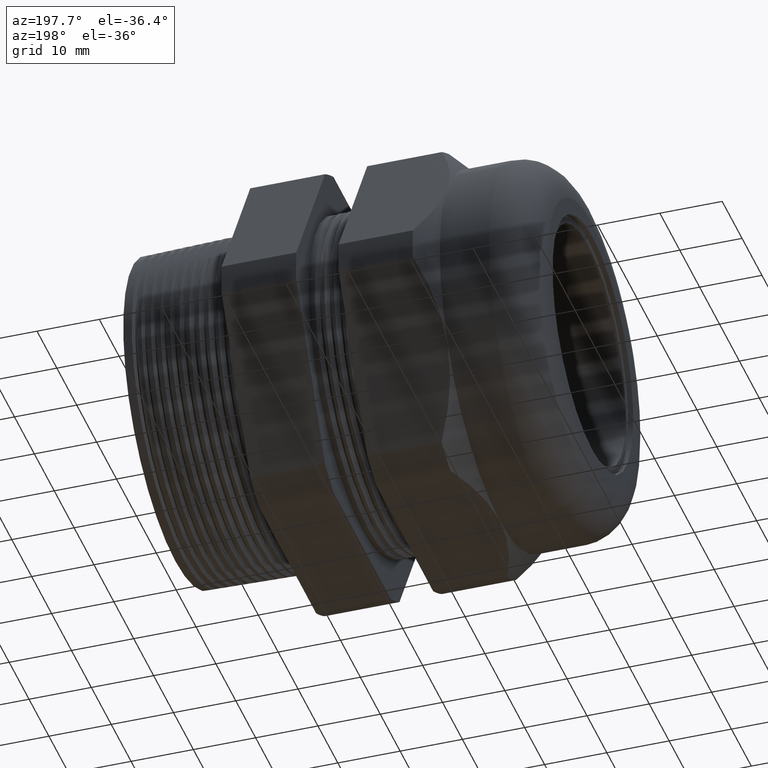
[diagram: clean part render]
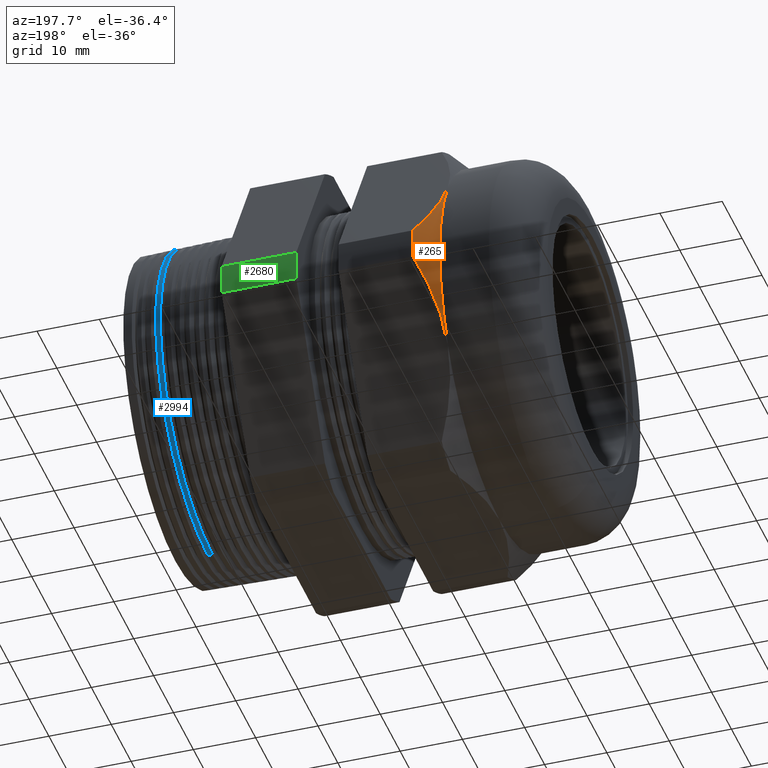
[diagram: same view with three faces highlighted in distinct colors, each labeled with its STEP entity id]
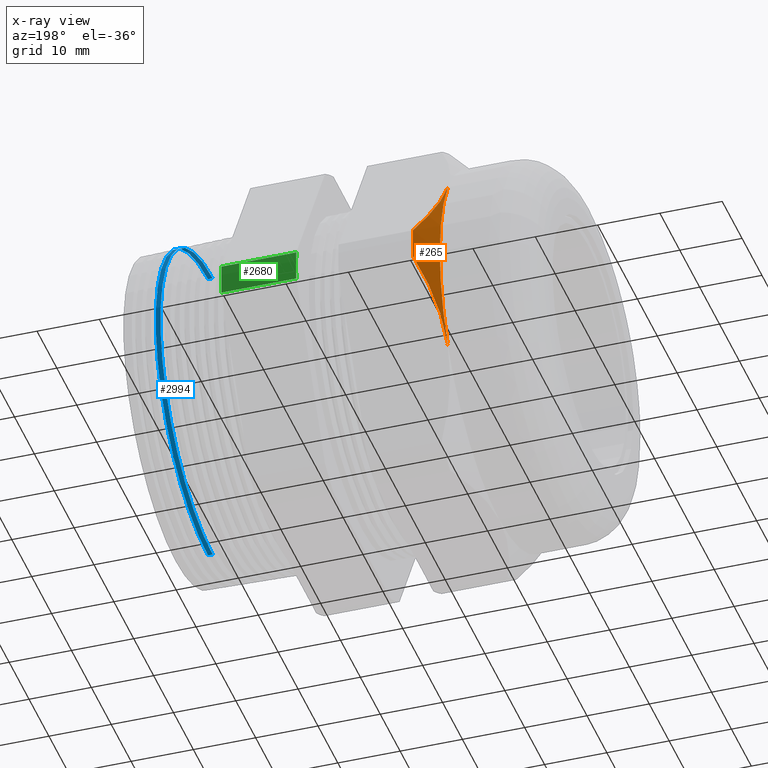
[diagram: x-ray of the same camera — body ghosted, the three highlighted faces saturated]
A machine part, auxiliary view with three faces highlighted in distinct colors.
The next image is the same camera in x-ray (body ghosted, the three faces saturated) — at least one of them is partly hidden behind the body in this view.
Their STEP definitions:

[orange] entity #265 — the highlighted conical surface has half-angle 45 deg.
#265 = ADVANCED_FACE ( 'NONE', ( #1013 ), #1090, .T. ) ;
#266 = EDGE_LOOP ( 'NONE', ( #267, #268, #269, #270 ) ) ;
#267 = ORIENTED_EDGE ( 'NONE', *, *, #4086, .F. ) ;
#268 = ORIENTED_EDGE ( 'NONE', *, *, #2968, .T. ) ;
#269 = ORIENTED_EDGE ( 'NONE', *, *, #3874, .F. ) ;
#270 = ORIENTED_EDGE ( 'NONE', *, *, #4128, .F. ) ;
#1013 = FACE_OUTER_BOUND ( 'NONE', #266, .T. ) ;
#1086 = DIRECTION ( 'NONE',  ( 0.0000000000000000000, 0.0000000000000000000, 1.000000000000000000 ) ) ;
#1087 = DIRECTION ( 'NONE',  ( 1.000000000000000000, 0.0000000000000000000, 0.0000000000000000000 ) ) ;
#1088 = CARTESIAN_POINT ( 'NONE',  ( -1.649449999999999600, 0.0000000000000000000, 0.0000000000000000000 ) ) ;
#1089 = AXIS2_PLACEMENT_3D ( 'NONE', #1088, #1087, #1086 ) ;
#1090 = CONICAL_SURFACE ( 'NONE', #1089, 1.179999999999999900, 0.7853981633974501700 ) ;
#2305 = CARTESIAN_POINT ( 'NONE',  ( -1.649449999999999600, 1.021909976465637900, 0.5899999999999999700 ) ) ;
#2311 = DIRECTION ( 'NONE',  ( 0.0000000000000000000, 0.0000000000000000000, -1.000000000000000000 ) ) ;
#2312 = DIRECTION ( 'NONE',  ( 1.000000000000000000, 0.0000000000000000000, 0.0000000000000000000 ) ) ;
#2313 = CARTESIAN_POINT ( 'NONE',  ( -1.649449999999999600, 0.0000000000000000000, 0.0000000000000000000 ) ) ;
#2314 = AXIS2_PLACEMENT_3D ( 'NONE', #2313, #2312, #2311 ) ;
#2315 = CIRCLE ( 'NONE', #2314, 1.179999999999999900 ) ;
#2316 = CARTESIAN_POINT ( 'NONE',  ( -1.649449999999999600, 1.021909976465638300, -0.5900000000000000800 ) ) ;
#2967 = VERTEX_POINT ( 'NONE', #2316 ) ;
#2968 = EDGE_CURVE ( 'NONE', #2967, #2971, #2315, .T. ) ;
#2971 = VERTEX_POINT ( 'NONE', #2305 ) ;
#3127 = B_SPLINE_CURVE_WITH_KNOTS ( 'NONE', 3,
 ( #3129, #3128, #3184, #3183, #3182, #3181, #3180, #3179, #3178, #3177 ),
 .UNSPECIFIED., .F., .F.,
 ( 4, 2, 2, 2, 4 ),
 ( 2.483246384144313400E-007, 0.007410219950490957600, 0.01111520576341722300, 0.01296769866988035600, 0.01482019157634348700 ),
 .UNSPECIFIED. ) ;
#3128 = CARTESIAN_POINT ( 'NONE',  ( -1.558901475994756600, 1.260934842160163400, 0.1759967883447547100 ) ) ;
#3129 = CARTESIAN_POINT ( 'NONE',  ( -1.519649999999999700, 1.306152847968161000, 0.09767690486835786700 ) ) ;
#3177 = CARTESIAN_POINT ( 'NONE',  ( -1.649449999999999600, 1.021909976465637900, 0.5899999999999999700 ) ) ;
#3178 = CARTESIAN_POINT ( 'NONE',  ( -1.649449999999998800, 1.034213843210325600, 0.5686890776686431800 ) ) ;
#3179 = CARTESIAN_POINT ( 'NONE',  ( -1.648671362268123100, 1.046630246888397900, 0.5471832356509358500 ) ) ;
#3180 = CARTESIAN_POINT ( 'NONE',  ( -1.645578772962689800, 1.071299393251978100, 0.5044550207698633700 ) ) ;
#3181 = CARTESIAN_POINT ( 'NONE',  ( -1.643274933607495900, 1.083539571180133700, 0.4832544107046148900 ) ) ;
#3182 = CARTESIAN_POINT ( 'NONE',  ( -1.634227948313096100, 1.119994011135374800, 0.4201134685406686100 ) ) ;
#3183 = CARTESIAN_POINT ( 'NONE',  ( -1.625348669446345900, 1.143942096382617700, 0.3786341681484526300 ) ) ;
#3184 = CARTESIAN_POINT ( 'NONE',  ( -1.591345505985919400, 1.214868581998317800, 0.2557858914597571100 ) ) ;
#3545 = CARTESIAN_POINT ( 'NONE',  ( -1.519649999999999700, 1.306152847968161000, -0.09767690486835838000 ) ) ;
#3546 = CARTESIAN_POINT ( 'NONE',  ( -1.539300024126190900, 1.283515867254771300, -0.1368853055939061600 ) ) ;
#3547 = CARTESIAN_POINT ( 'NONE',  ( -1.557343162014755300, 1.260539715777235600, -0.1766811673153969600 ) ) ;
#3548 = CARTESIAN_POINT ( 'NONE',  ( -1.589329828712719100, 1.213885783483384900, -0.2574881484212248100 ) ) ;
#3549 = CARTESIAN_POINT ( 'NONE',  ( -1.603147026242972800, 1.190386845346794500, -0.2981895031977165300 ) ) ;
#3550 = CARTESIAN_POINT ( 'NONE',  ( -1.637033206165112900, 1.119292164269853200, -0.4213291029708848800 ) ) ;
#3551 = CARTESIAN_POINT ( 'NONE',  ( -1.649449999999999600, 1.071091697083841100, -0.5048147610856147400 ) ) ;
#3552 = CARTESIAN_POINT ( 'NONE',  ( -1.649449999999999600, 1.021909976465638300, -0.5900000000000000800 ) ) ;
#3556 = B_SPLINE_CURVE_WITH_KNOTS ( 'NONE', 3,
 ( #3552, #3551, #3550, #3549, #3548, #3547, #3546, #3545 ),
 .UNSPECIFIED., .F., .F.,
 ( 4, 2, 2, 4 ),
 ( 0.01482019157634346400, 0.02222508228781089700, 0.02592752764354461900, 0.02962997299927833800 ),
 .UNSPECIFIED. ) ;
#3604 = DIRECTION ( 'NONE',  ( 0.0000000000000000000, 0.0000000000000000000, -1.000000000000000000 ) ) ;
#3605 = DIRECTION ( 'NONE',  ( 1.000000000000000000, 0.0000000000000000000, 0.0000000000000000000 ) ) ;
#3606 = CARTESIAN_POINT ( 'NONE',  ( -1.519649999999999700, 0.0000000000000000000, 0.0000000000000000000 ) ) ;
#3607 = AXIS2_PLACEMENT_3D ( 'NONE', #3606, #3605, #3604 ) ;
#3608 = CIRCLE ( 'NONE', #3607, 1.309800000000000100 ) ;
#3610 = CARTESIAN_POINT ( 'NONE',  ( -1.519649999999999700, 1.306152847968161000, -0.09767690486835838000 ) ) ;
#3655 = CARTESIAN_POINT ( 'NONE',  ( -1.519649999999999700, 1.306152847968161000, 0.09767690486835786700 ) ) ;
#3874 = EDGE_CURVE ( 'NONE', #4133, #2971, #3127, .T. ) ;
#4086 = EDGE_CURVE ( 'NONE', #2967, #4124, #3556, .T. ) ;
#4124 = VERTEX_POINT ( 'NONE', #3610 ) ;
#4128 = EDGE_CURVE ( 'NONE', #4124, #4133, #3608, .T. ) ;
#4133 = VERTEX_POINT ( 'NONE', #3655 ) ;

[blue] entity #2994 — the highlighted conical surface has half-angle 1.5 deg.
#2019 = CARTESIAN_POINT ( 'NONE',  ( 0.1633178923772483100, 0.0000000000000000000, 1.033242555088589800 ) ) ;
#2020 = DIRECTION ( 'NONE',  ( 0.0000000000000000000, 0.0000000000000000000, -1.000000000000000000 ) ) ;
#2021 = DIRECTION ( 'NONE',  ( -1.000000000000000000, 0.0000000000000000000, 0.0000000000000000000 ) ) ;
#2022 = CARTESIAN_POINT ( 'NONE',  ( 0.1633178923772483100, 0.0000000000000000000, 0.0000000000000000000 ) ) ;
#2023 = AXIS2_PLACEMENT_3D ( 'NONE', #2022, #2021, #2020 ) ;
#2024 = CIRCLE ( 'NONE', #2023, 1.033242555088589800 ) ;
#2025 = CARTESIAN_POINT ( 'NONE',  ( 0.1633178923772483100, 1.265357187832074100E-016, -1.033242555088589800 ) ) ;
#2338 = DIRECTION ( 'NONE',  ( 0.0000000000000000000, 0.0000000000000000000, 1.000000000000000000 ) ) ;
#2339 = DIRECTION ( 'NONE',  ( -1.000000000000000000, 0.0000000000000000000, 0.0000000000000000000 ) ) ;
#2340 = AXIS2_PLACEMENT_3D ( 'NONE', #2342, #2339, #2338 ) ;
#2341 = CONICAL_SURFACE ( 'NONE', #2340, 1.027044815981552200, 0.02617993877990773500 ) ;
#2342 = CARTESIAN_POINT ( 'NONE',  ( 0.3999999999999999700, 0.0000000000000000000, 0.0000000000000000000 ) ) ;
#2343 = FACE_OUTER_BOUND ( 'NONE', #2987, .T. ) ;
#2429 = DIRECTION ( 'NONE',  ( -0.9996573249755573700, 0.0000000000000000000, 0.02617694830786594700 ) ) ;
#2430 = VECTOR ( 'NONE', #2429, 39.37007874015748100 ) ;
#2431 = CARTESIAN_POINT ( 'NONE',  ( 0.3999999999999999700, 0.0000000000000000000, 1.027044815981552200 ) ) ;
#2432 = LINE ( 'NONE', #2431, #2430 ) ;
#2433 = DIRECTION ( 'NONE',  ( -0.9996573249755573700, 3.205751595667375400E-018, -0.02617694830786594700 ) ) ;
#2434 = VECTOR ( 'NONE', #2433, 39.37007874015748100 ) ;
#2435 = CARTESIAN_POINT ( 'NONE',  ( 0.3999999999999999700, 1.257767146472690300E-016, -1.027044815981552200 ) ) ;
#2436 = LINE ( 'NONE', #2435, #2434 ) ;
#2809 = VERTEX_POINT ( 'NONE', #2025 ) ;
#2811 = EDGE_CURVE ( 'NONE', #2812, #2809, #2024, .T. ) ;
#2812 = VERTEX_POINT ( 'NONE', #2019 ) ;
#2987 = EDGE_LOOP ( 'NONE', ( #3038, #3048, #3047, #3035 ) ) ;
#2994 = ADVANCED_FACE ( 'NONE', ( #2343 ), #2341, .T. ) ;
#3035 = ORIENTED_EDGE ( 'NONE', *, *, #3043, .F. ) ;
#3038 = ORIENTED_EDGE ( 'NONE', *, *, #4068, .F. ) ;
#3040 = EDGE_CURVE ( 'NONE', #4066, #2809, #2436, .T. ) ;
#3043 = EDGE_CURVE ( 'NONE', #4062, #2812, #2432, .T. ) ;
#3047 = ORIENTED_EDGE ( 'NONE', *, *, #2811, .F. ) ;
#3048 = ORIENTED_EDGE ( 'NONE', *, *, #3040, .T. ) ;
#3480 = CARTESIAN_POINT ( 'NONE',  ( 0.1931537368685720100, 0.0000000000000000000, 1.032461276004789800 ) ) ;
#3527 = DIRECTION ( 'NONE',  ( 0.0000000000000000000, 0.0000000000000000000, 1.000000000000000000 ) ) ;
#3528 = DIRECTION ( 'NONE',  ( 1.000000000000000000, 0.0000000000000000000, 0.0000000000000000000 ) ) ;
#3529 = CARTESIAN_POINT ( 'NONE',  ( 0.1931537368685720100, 0.0000000000000000000, 0.0000000000000000000 ) ) ;
#3530 = AXIS2_PLACEMENT_3D ( 'NONE', #3529, #3528, #3527 ) ;
#3531 = CIRCLE ( 'NONE', #3530, 1.032461276004789800 ) ;
#3532 = CARTESIAN_POINT ( 'NONE',  ( 0.1931537368685720100, 1.264878792367466000E-016, -1.032461276004789800 ) ) ;
#4062 = VERTEX_POINT ( 'NONE', #3480 ) ;
#4066 = VERTEX_POINT ( 'NONE', #3532 ) ;
#4068 = EDGE_CURVE ( 'NONE', #4066, #4062, #3531, .T. ) ;

[green] entity #2680 — the highlighted cylindrical surface (partial cylindrical patch) has radius 33.2689 mm, axis along (-1, 0, 0).
#1659 = CARTESIAN_POINT ( 'NONE',  ( -0.7824400000000001400, 1.306152847968161000, -0.09767690486835838000 ) ) ;
#1688 = DIRECTION ( 'NONE',  ( -1.000000000000000000, 0.0000000000000000000, 0.0000000000000000000 ) ) ;
#1689 = VECTOR ( 'NONE', #1688, 39.37007874015748100 ) ;
#1690 = CARTESIAN_POINT ( 'NONE',  ( 0.4000000000000000800, 1.306152847968161000, -0.09767690486835838000 ) ) ;
#1691 = LINE ( 'NONE', #1690, #1689 ) ;
#1707 = CYLINDRICAL_SURFACE ( 'NONE', #1771, 1.309800000000000100 ) ;
#1708 = FACE_OUTER_BOUND ( 'NONE', #2675, .T. ) ;
#1709 = DIRECTION ( 'NONE',  ( 0.0000000000000000000, 0.0000000000000000000, 1.000000000000000000 ) ) ;
#1710 = DIRECTION ( 'NONE',  ( -1.000000000000000000, 0.0000000000000000000, 0.0000000000000000000 ) ) ;
#1711 = AXIS2_PLACEMENT_3D ( 'NONE', #1716, #1710, #1709 ) ;
#1712 = CIRCLE ( 'NONE', #1711, 1.309800000000000100 ) ;
#1716 = CARTESIAN_POINT ( 'NONE',  ( -0.7824400000000001400, 0.0000000000000000000, 0.0000000000000000000 ) ) ;
#1759 = DIRECTION ( 'NONE',  ( -1.000000000000000000, 0.0000000000000000000, 0.0000000000000000000 ) ) ;
#1760 = VECTOR ( 'NONE', #1759, 39.37007874015748100 ) ;
#1761 = CARTESIAN_POINT ( 'NONE',  ( 0.4000000000000000800, 1.306152847968161000, 0.09767690486835799200 ) ) ;
#1762 = LINE ( 'NONE', #1761, #1760 ) ;
#1763 = CARTESIAN_POINT ( 'NONE',  ( -0.7824400000000001400, 1.306152847968161000, 0.09767690486835799200 ) ) ;
#1768 = DIRECTION ( 'NONE',  ( 0.0000000000000000000, 0.0000000000000000000, 1.000000000000000000 ) ) ;
#1769 = DIRECTION ( 'NONE',  ( -1.000000000000000000, 0.0000000000000000000, 0.0000000000000000000 ) ) ;
#1770 = CARTESIAN_POINT ( 'NONE',  ( 0.4000000000000000800, 0.0000000000000000000, 0.0000000000000000000 ) ) ;
#1771 = AXIS2_PLACEMENT_3D ( 'NONE', #1770, #1769, #1768 ) ;
#2109 = CARTESIAN_POINT ( 'NONE',  ( -0.3100000000000000000, 1.306152847968161000, -0.09767690486835835200 ) ) ;
#2630 = VERTEX_POINT ( 'NONE', #1659 ) ;
#2650 = EDGE_CURVE ( 'NONE', #2870, #2630, #1691, .T. ) ;
#2670 = EDGE_CURVE ( 'NONE', #2682, #2630, #1712, .T. ) ;
#2671 = ORIENTED_EDGE ( 'NONE', *, *, #2684, .F. ) ;
#2672 = ORIENTED_EDGE ( 'NONE', *, *, #2670, .F. ) ;
#2673 = ORIENTED_EDGE ( 'NONE', *, *, #4175, .F. ) ;
#2674 = ORIENTED_EDGE ( 'NONE', *, *, #2650, .T. ) ;
#2675 = EDGE_LOOP ( 'NONE', ( #2671, #2673, #2674, #2672 ) ) ;
#2680 = ADVANCED_FACE ( 'NONE', ( #1708 ), #1707, .T. ) ;
#2682 = VERTEX_POINT ( 'NONE', #1763 ) ;
#2684 = EDGE_CURVE ( 'NONE', #4170, #2682, #1762, .T. ) ;
#2870 = VERTEX_POINT ( 'NONE', #2109 ) ;
#3690 = DIRECTION ( 'NONE',  ( 0.0000000000000000000, 0.0000000000000000000, -1.000000000000000000 ) ) ;
#3691 = DIRECTION ( 'NONE',  ( 1.000000000000000000, 0.0000000000000000000, 0.0000000000000000000 ) ) ;
#3692 = CARTESIAN_POINT ( 'NONE',  ( -0.3100000000000000000, 0.0000000000000000000, 0.0000000000000000000 ) ) ;
#3693 = AXIS2_PLACEMENT_3D ( 'NONE', #3692, #3691, #3690 ) ;
#3694 = CIRCLE ( 'NONE', #3693, 1.309800000000000100 ) ;
#3700 = CARTESIAN_POINT ( 'NONE',  ( -0.3100000000000000000, 1.306152847968161000, 0.09767690486835799200 ) ) ;
#4170 = VERTEX_POINT ( 'NONE', #3700 ) ;
#4175 = EDGE_CURVE ( 'NONE', #2870, #4170, #3694, .T. ) ;